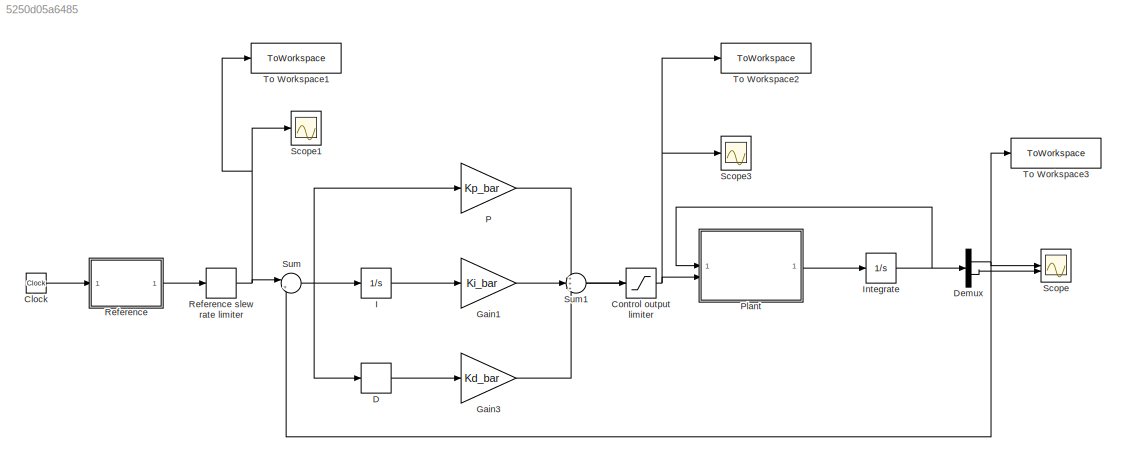
MODEL slx_5250d05a6485
KIND model
CONFIG AbsTol = auto
CONFIG EnableMultiTasking = off
CONFIG FixedStep = auto
CONFIG MaxStep = auto
CONFIG MinStep = auto
CONFIG RelTol = 1e-3
CONFIG SampleTimeConstraint = Unconstrained
CONFIG SolverName = VariableStepAuto
CONFIG StartTime = 0.0
CONFIG StopTime = 25
BLOCK [Clock] Clock
BLOCK [Saturate] Control output limiter
  LowerLimit = -9
  UpperLimit = 9
BLOCK [Derivative] D
BLOCK [Demux] Demux
  Outputs = 2
BLOCK [Gain] Gain1
  Gain = Ki_bar
BLOCK [Gain] Gain3
  Gain = Kd_bar
BLOCK [Integrator] I
BLOCK [Integrator] Integrate
  InitialCondition = x_s
BLOCK [Gain] P
  Gain = Kp_bar
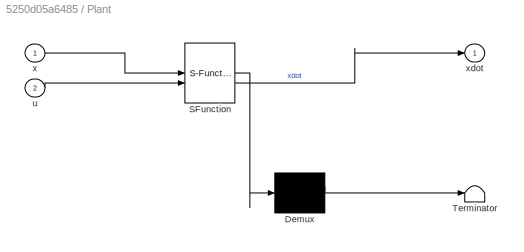
BLOCK [SubSystem] Plant
  ErrorFcn = Stateflow.Translate.translate
  PermitHierarchicalResolution = ExplicitOnly
  SFBlockType = MATLAB Function
  TreatAsAtomicUnit = on
BLOCK [Demux] Plant/ Demux 
  Outputs = 1
BLOCK [S-Function] Plant/ SFunction 
  EnableBusSupport = on
  FunctionName = sf_sfun
  PortCounts = [2 2]
  SFcnIsStateOwnerBlock = off
  SFunctionDeploymentMode = off
  Tag = Stateflow S-Function 2
BLOCK [Terminator] Plant/ Terminator 
BLOCK [Inport] Plant/u
  Port = 2
BLOCK [Inport] Plant/x
BLOCK [Outport] Plant/xdot
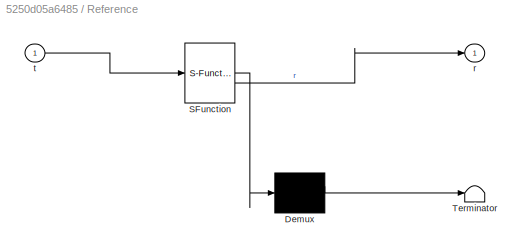
BLOCK [SubSystem] Reference
  ErrorFcn = Stateflow.Translate.translate
  PermitHierarchicalResolution = ExplicitOnly
  SFBlockType = MATLAB Function
  TreatAsAtomicUnit = on
BLOCK [RateLimiter] Reference slew rate limiter
  FallingSlewLimit = -10
  RisingSlewLimit = 10
  SampleTimeMode = inherited
BLOCK [Demux] Reference/ Demux 
  Outputs = 1
BLOCK [S-Function] Reference/ SFunction 
  EnableBusSupport = on
  FunctionName = sf_sfun
  PortCounts = [1 2]
  SFcnIsStateOwnerBlock = off
  SFunctionDeploymentMode = off
  Tag = Stateflow S-Function 1
BLOCK [Terminator] Reference/ Terminator 
BLOCK [Outport] Reference/r
BLOCK [Inport] Reference/t
BLOCK [Scope] Scope
  Floating = off
  NumInputPorts = 2
  ScopeSpecificationString = Simulink.scopes.TimeScopeBlockCfg('CurrentConfiguration', extmgr.ConfigurationSet(extmgr.Configuration('Core','General UI',true),extmgr.Configuration('Core','Source UI',true),extmgr.Configuration('Sources','WiredSimulink',true),extmgr.Configuration('Visuals','Time Domain',true,'SerializedDisplays',{struct('MinYLimReal','-20.12925','MaxYLimReal','21.06585','YLabelReal','','MinYLimMag','0.00000','Ma...<+1733ch>
BLOCK [Scope] Scope1
  Floating = off
  NumInputPorts = 1
  ScopeSpecificationString = Simulink.scopes.TimeScopeBlockCfg('CurrentConfiguration', extmgr.ConfigurationSet(extmgr.Configuration('Core','General UI',true),extmgr.Configuration('Core','Source UI',true),extmgr.Configuration('Sources','WiredSimulink',true,'DataLoggingVariableName','ScopeData1'),extmgr.Configuration('Visuals','Time Domain',true,'SerializedDisplays',{struct('MinYLimReal','-0.19635','MaxYLimReal','1.76715','YLab...<+1726ch>
BLOCK [Scope] Scope3
  Floating = off
  NumInputPorts = 1
  ScopeSpecificationString = Simulink.scopes.TimeScopeBlockCfg('CurrentConfiguration', extmgr.ConfigurationSet(extmgr.Configuration('Core','General UI',true),extmgr.Configuration('Core','Source UI',true),extmgr.Configuration('Sources','WiredSimulink',true,'DataLoggingVariableName','ScopeData3'),extmgr.Configuration('Visuals','Time Domain',true,'SerializedDisplays',{struct('MinYLimReal','-11.25','MaxYLimReal','11.25','YLabelRe...<+1713ch>
BLOCK [Sum] Sum
  Inputs = |+-
BLOCK [Sum] Sum1
  Inputs = +++
BLOCK [ToWorkspace] To Workspace1
  FixptAsFi = on
  MaxDataPoints = inf
  SampleTime = -1
  SaveFormat = Timeseries
  VariableName = r
BLOCK [ToWorkspace] To Workspace2
  FixptAsFi = on
  MaxDataPoints = inf
  SampleTime = -1
  SaveFormat = Timeseries
  VariableName = v
BLOCK [ToWorkspace] To Workspace3
  FixptAsFi = on
  MaxDataPoints = inf
  SampleTime = -1
  SaveFormat = Timeseries
  VariableName = x1
LINE Clock:1 -> Reference:1
NET Control output limiter:1 -> Plant:2, Scope3:1, To Workspace2:1
LINE D:1 -> Gain3:1
NET Demux:1 -> Scope:1, Sum:2, To Workspace3:1
LINE Demux:2 -> Scope:2
LINE Gain1:1 -> Sum1:2
LINE Gain3:1 -> Sum1:3
LINE I:1 -> Gain1:1
NET Integrate:1 -> Demux:1, Plant:1
LINE P:1 -> Sum1:1
LINE Plant:1 -> Integrate:1
NET Reference slew rate limiter:1 -> Scope1:1, Sum:1, To Workspace1:1
LINE Reference:1 -> Reference slew rate limiter:1
LINE Sum1:1 -> Control output limiter:1
NET Sum:1 -> D:1, I:1, P:1
note: NET lines group one-source signal fan-out (src -> all destinations, sorted); 1:1 wires keep LINE
CHART Plant states=1 transitions=1
  STATE_LABEL 'eML_blk_kernel()'
  STATE_LABEL 'SCRIPT:\nfunction xdot = pendulum_f(x, u)\n% x = [theta, theta_dot]\n% u = [V]\n% system parameters\nRm = 3.5; % Ohms, Armature resistance\nKb = 0.1; % Vs/rad, Motor back EMF constant\nKt = 0.65*Kb; % Nm/A, Motor torque constant\n% Lm;  H, Armature inductance; assume 0\nmp = 0.04;% kg, Spotlight(pendulum) mass\nLp = 0.1; %m, Spotlight(pendulum) length\nIp = mp*(Lp)^2;% Moment of inertia of pendulum about cen...<+229ch>'
CHART Reference states=1 transitions=1
  STATE_LABEL 'eML_blk_kernel()'
  STATE_LABEL 'SCRIPT:\nfunction r = pendulum_ref(t)\nif t < 5\n\tr = pi/2;\nelseif t < 10\n\tr = 0;\nelseif t < 15\n\tr = pi/2;\nelseif t < 20\n\tr = 0;\nelse\n\tr = pi/2;\nend\nend\n'
CHART  states=0 transitions=0
CHART  states=0 transitions=0
